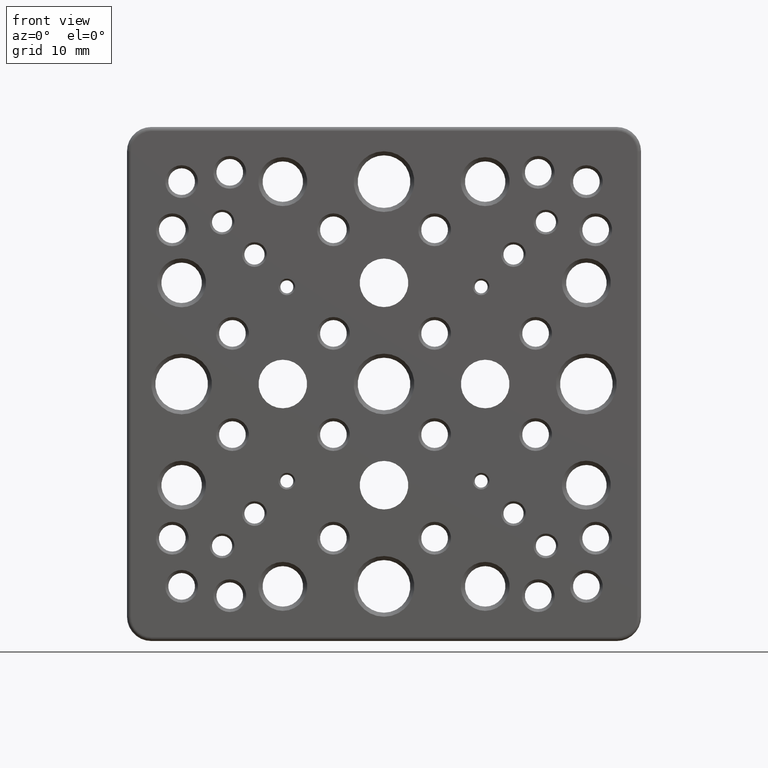
[diagram: clean part render]
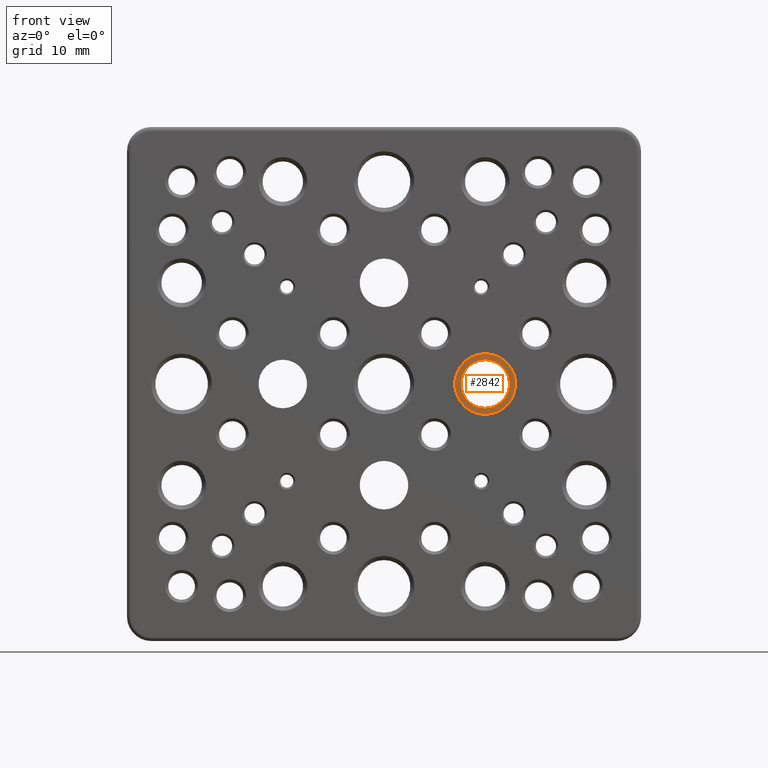
[diagram: same view with one face highlighted and labeled with its STEP entity id]
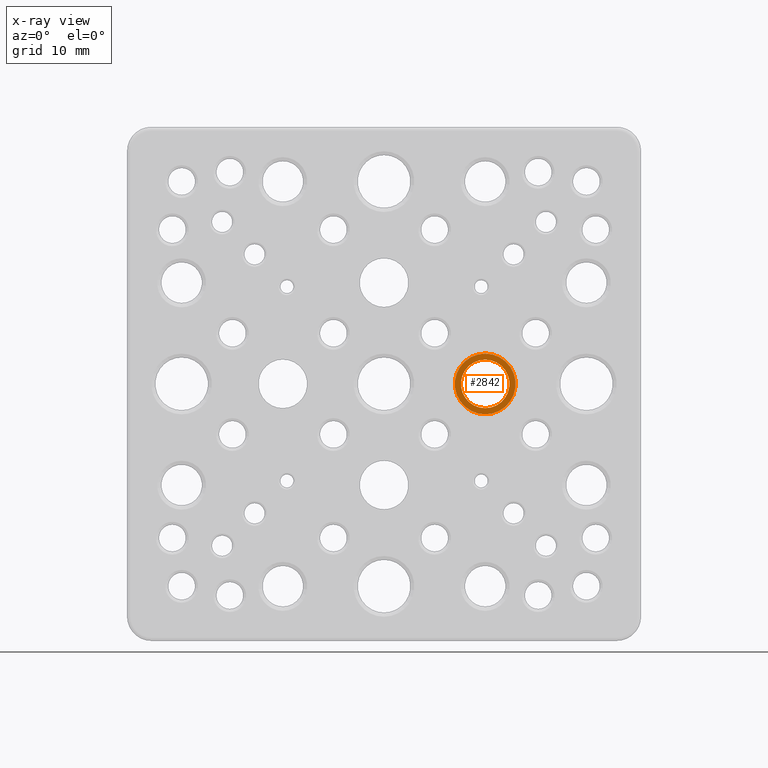
[diagram: x-ray of the same camera — body ghosted, the highlighted face saturated]
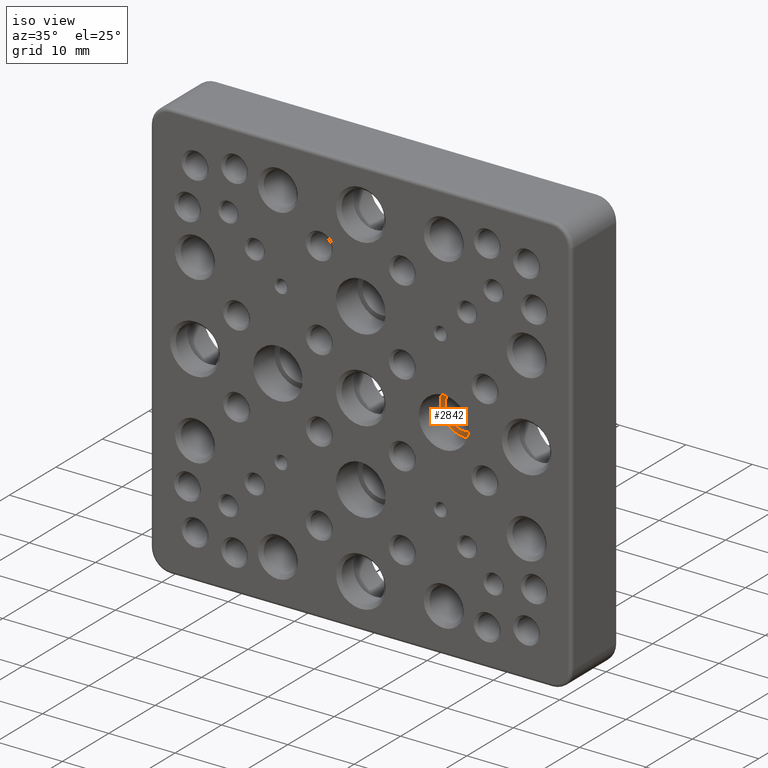
[diagram: same view with one face highlighted and labeled with its STEP entity id]
A machine part, front view. The second image highlights one B-rep face of the part: STEP entity #2842.
The next image is the same camera in x-ray: the body ghosted, the highlighted face saturated — about 0% of this face is hidden behind the body in this view.
A second angle (iso view) of the same face is appended — the face is thin or edge-on in the first view.
In plain terms, the highlighted planar face has unit normal (0, 1, 0).
Its self-contained STEP definition (entity closure, byte-faithful):
#229 = DIRECTION ( 'NONE',  ( -0.000000000000000000, -1.000000000000000000, -0.000000000000000000 ) ) ;
#405 = CARTESIAN_POINT ( 'NONE',  ( 15.50000000000001776, 4.599999999999999645, 0.000000000000000000 ) ) ;
#432 = DIRECTION ( 'NONE',  ( 0.000000000000000000, -0.000000000000000000, 1.000000000000000000 ) ) ;
#498 = ORIENTED_EDGE ( 'NONE', *, *, #2672, .T. ) ;
#538 = CIRCLE ( 'NONE', #2951, 3.000000000000012879 ) ;
#902 = CARTESIAN_POINT ( 'NONE',  ( 12.50000000000000355, 4.599999999999999645, -3.750000000000013767 ) ) ;
#1073 = DIRECTION ( 'NONE',  ( -0.000000000000000000, -1.000000000000000000, -0.000000000000000000 ) ) ;
#1080 = EDGE_LOOP ( 'NONE', ( #498 ) ) ;
#1627 = EDGE_LOOP ( 'NONE', ( #2572 ) ) ;
#1934 = FACE_BOUND ( 'NONE', #1627, .T. ) ;
#1966 = EDGE_CURVE ( 'NONE', #2625, #2625, #538, .T. ) ;
#2572 = ORIENTED_EDGE ( 'NONE', *, *, #1966, .F. ) ;
#2625 = VERTEX_POINT ( 'NONE', #3608 ) ;
#2672 = EDGE_CURVE ( 'NONE', #3704, #3704, #3722, .T. ) ;
#2842 = ADVANCED_FACE ( 'NONE', ( #1934, #3158 ), #3198, .F. ) ;
#2925 = CARTESIAN_POINT ( 'NONE',  ( 12.50000000000000355, 4.599999999999999645, 0.000000000000000000 ) ) ;
#2951 = AXIS2_PLACEMENT_3D ( 'NONE', #2925, #1073, #3310 ) ;
#3013 = AXIS2_PLACEMENT_3D ( 'NONE', #405, #3781, #432 ) ;
#3072 = AXIS2_PLACEMENT_3D ( 'NONE', #3628, #229, #3645 ) ;
#3158 = FACE_OUTER_BOUND ( 'NONE', #1080, .T. ) ;
#3198 = PLANE ( 'NONE',  #3013 ) ;
#3310 = DIRECTION ( 'NONE',  ( 0.000000000000000000, 0.000000000000000000, -1.000000000000000000 ) ) ;
#3608 = CARTESIAN_POINT ( 'NONE',  ( 12.50000000000000355, 4.599999999999999645, -3.000000000000012879 ) ) ;
#3628 = CARTESIAN_POINT ( 'NONE',  ( 12.50000000000000355, 4.599999999999999645, 0.000000000000000000 ) ) ;
#3645 = DIRECTION ( 'NONE',  ( 0.000000000000000000, 0.000000000000000000, -1.000000000000000000 ) ) ;
#3704 = VERTEX_POINT ( 'NONE', #902 ) ;
#3722 = CIRCLE ( 'NONE', #3072, 3.750000000000013767 ) ;
#3781 = DIRECTION ( 'NONE',  ( 0.000000000000000000, 1.000000000000000000, 0.000000000000000000 ) ) ;